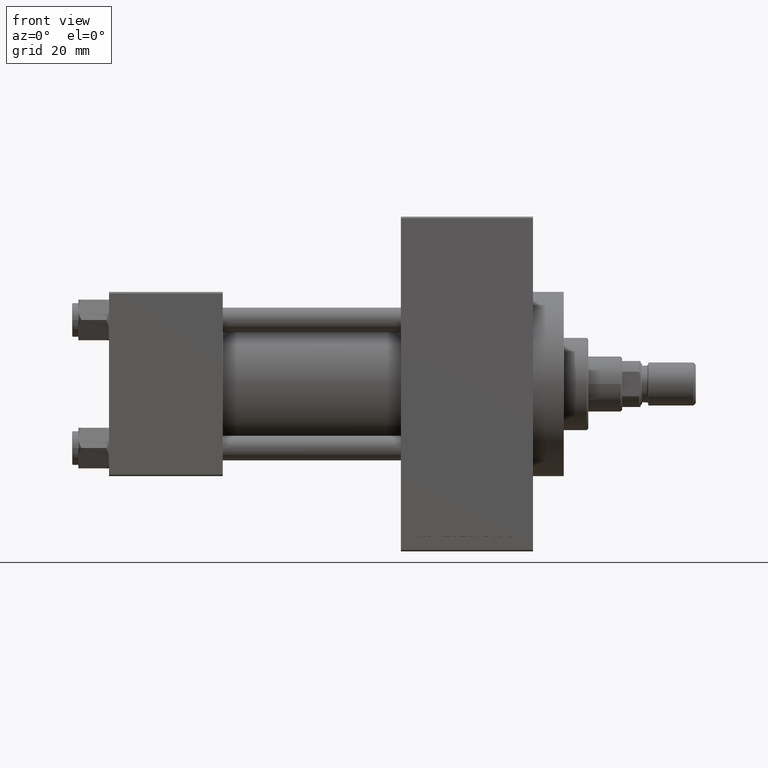
[diagram: clean part render]
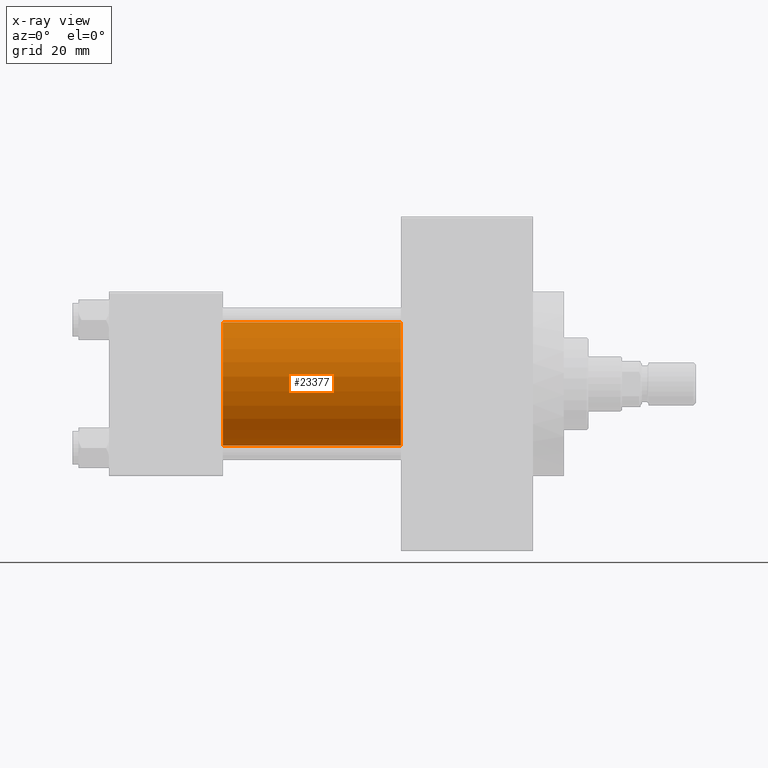
[diagram: x-ray — body ghosted, one internal face saturated and labeled with its STEP entity id]
A machine part, front view, then the same camera in x-ray: the body is ghosted and one INTERNAL B-rep face — a face not visible from any outside direction — is saturated and labeled: STEP entity #23377.
In plain terms, the highlighted cylindrical surface (partial cylindrical patch) has radius 20 mm, axis along (-1, -0, -0).
Its self-contained STEP definition (entity closure, byte-faithful):
#2070 = CARTESIAN_POINT ( 'NONE',  ( 37.00000000000000000, -1.527916156705046464E-16, -20.00000000000000000 ) ) ;
#2282 = ORIENTED_EDGE ( 'NONE', *, *, #42977, .T. ) ;
#2450 = DIRECTION ( 'NONE',  ( -1.000000000000000000, -0.000000000000000000, -0.000000000000000000 ) ) ;
#3663 = AXIS2_PLACEMENT_3D ( 'NONE', #11532, #30115, #22882 ) ;
#4799 = DIRECTION ( 'NONE',  ( 0.000000000000000000, 0.000000000000000000, 1.000000000000000000 ) ) ;
#5108 = ORIENTED_EDGE ( 'NONE', *, *, #40959, .T. ) ;
#7876 = VERTEX_POINT ( 'NONE', #46827 ) ;
#8318 = EDGE_CURVE ( 'NONE', #7876, #29218, #29802, .T. ) ;
#9943 = CARTESIAN_POINT ( 'NONE',  ( 95.00000000000000000, -1.527916156705046464E-16, -20.00000000000000000 ) ) ;
#11376 = DIRECTION ( 'NONE',  ( -1.000000000000000000, -0.000000000000000000, -0.000000000000000000 ) ) ;
#11532 = CARTESIAN_POINT ( 'NONE',  ( 95.00000000000000000, -2.602085213965210642E-15, 0.000000000000000000 ) ) ;
#12105 = VECTOR ( 'NONE', #2450, 1000.000000000000000 ) ;
#14764 = AXIS2_PLACEMENT_3D ( 'NONE', #34966, #37654, #4799 ) ;
#15137 = ORIENTED_EDGE ( 'NONE', *, *, #8318, .F. ) ;
#15995 = CIRCLE ( 'NONE', #3663, 20.00000000000000000 ) ;
#17885 = VERTEX_POINT ( 'NONE', #41292 ) ;
#19298 = CYLINDRICAL_SURFACE ( 'NONE', #14764, 20.00000000000000000 ) ;
#22882 = DIRECTION ( 'NONE',  ( 0.000000000000000000, 0.000000000000000000, -1.000000000000000000 ) ) ;
#23377 = ADVANCED_FACE ( 'NONE', ( #38586 ), #19298, .F. ) ;
#23734 = VERTEX_POINT ( 'NONE', #31285 ) ;
#24233 = DIRECTION ( 'NONE',  ( 1.000000000000000000, 0.000000000000000000, 0.000000000000000000 ) ) ;
#29218 = VERTEX_POINT ( 'NONE', #2070 ) ;
#29802 = CIRCLE ( 'NONE', #41328, 20.00000000000000000 ) ;
#30115 = DIRECTION ( 'NONE',  ( 1.000000000000000000, 0.000000000000000000, 0.000000000000000000 ) ) ;
#30732 = ORIENTED_EDGE ( 'NONE', *, *, #38001, .F. ) ;
#31285 = CARTESIAN_POINT ( 'NONE',  ( 95.00000000000000000, -1.527916156705046464E-16, -20.00000000000000000 ) ) ;
#33111 = CARTESIAN_POINT ( 'NONE',  ( 95.00000000000000000, -2.602085213965210642E-15, 20.00000000000000000 ) ) ;
#34966 = CARTESIAN_POINT ( 'NONE',  ( 95.00000000000000000, -2.602085213965210642E-15, 0.000000000000000000 ) ) ;
#35537 = LINE ( 'NONE', #9943, #12105 ) ;
#37654 = DIRECTION ( 'NONE',  ( -1.000000000000000000, -0.000000000000000000, -0.000000000000000000 ) ) ;
#38001 = EDGE_CURVE ( 'NONE', #17885, #7876, #44926, .T. ) ;
#38586 = FACE_OUTER_BOUND ( 'NONE', #46229, .T. ) ;
#40959 = EDGE_CURVE ( 'NONE', #17885, #23734, #15995, .T. ) ;
#41292 = CARTESIAN_POINT ( 'NONE',  ( 95.00000000000000000, -2.602085213965210642E-15, 20.00000000000000000 ) ) ;
#41328 = AXIS2_PLACEMENT_3D ( 'NONE', #43055, #24233, #46189 ) ;
#42977 = EDGE_CURVE ( 'NONE', #23734, #29218, #35537, .T. ) ;
#43055 = CARTESIAN_POINT ( 'NONE',  ( 37.00000000000000000, -2.602085213965210642E-15, 0.000000000000000000 ) ) ;
#44926 = LINE ( 'NONE', #33111, #47487 ) ;
#46189 = DIRECTION ( 'NONE',  ( 0.000000000000000000, 0.000000000000000000, -1.000000000000000000 ) ) ;
#46229 = EDGE_LOOP ( 'NONE', ( #5108, #2282, #15137, #30732 ) ) ;
#46827 = CARTESIAN_POINT ( 'NONE',  ( 37.00000000000000000, -2.602085213965210642E-15, 20.00000000000000000 ) ) ;
#47487 = VECTOR ( 'NONE', #11376, 1000.000000000000000 ) ;